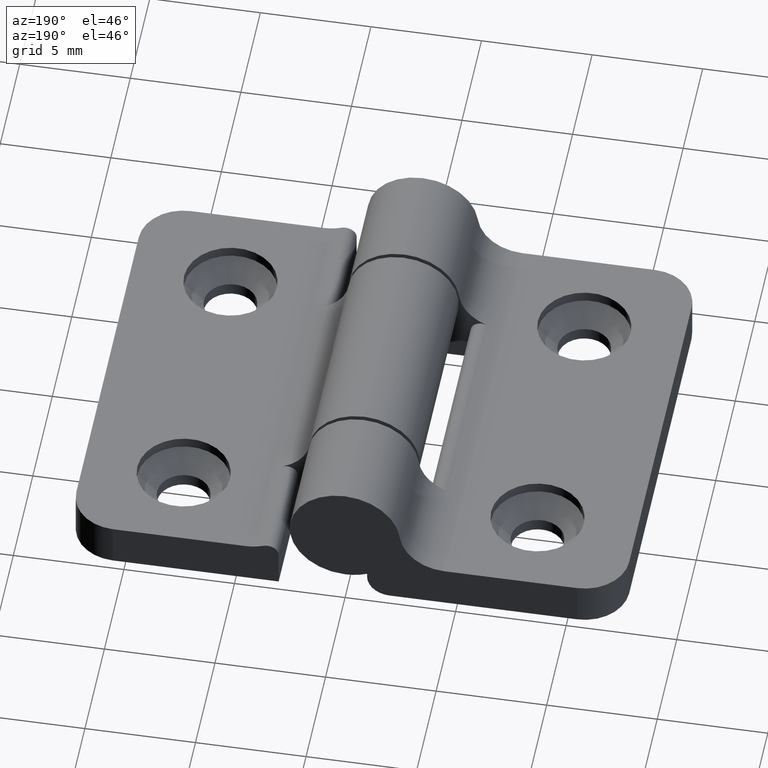
[diagram: clean part render]
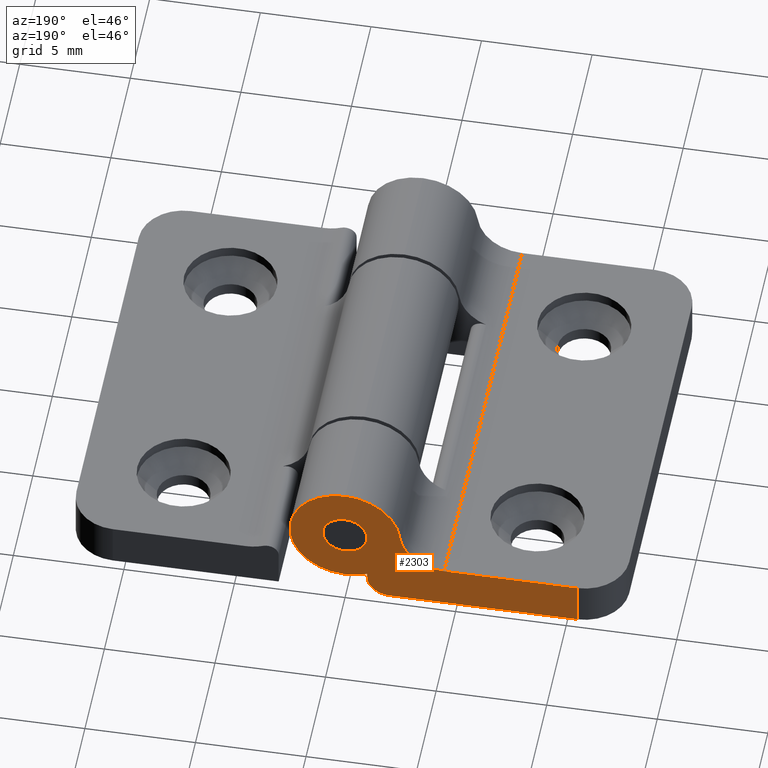
[diagram: same view with one face highlighted and labeled with its STEP entity id]
A machine part, auxiliary view. The second image highlights one B-rep face of the part: STEP entity #2303.
In plain terms, the highlighted planar face has unit normal (0, 1, 0).
Its self-contained STEP definition (entity closure, byte-faithful):
#10 = CARTESIAN_POINT ( 'NONE',  ( 0.0000000000000000000, 20.00000000000000000, 0.0000000000000000000 ) ) ;
#76 = CIRCLE ( 'NONE', #2438, 1.000000000000000000 ) ;
#81 = DIRECTION ( 'NONE',  ( 0.0000000000000000000, 0.0000000000000000000, 1.000000000000000000 ) ) ;
#86 = AXIS2_PLACEMENT_3D ( 'NONE', #999, #2335, #1196 ) ;
#94 = ORIENTED_EDGE ( 'NONE', *, *, #2414, .T. ) ;
#96 = DIRECTION ( 'NONE',  ( 0.0000000000000000000, 0.0000000000000000000, 1.000000000000000000 ) ) ;
#106 = AXIS2_PLACEMENT_3D ( 'NONE', #2408, #1272, #96 ) ;
#110 = CARTESIAN_POINT ( 'NONE',  ( -10.50000000000000000, 20.00000000000000000, -3.499999999999999600 ) ) ;
#120 = CIRCLE ( 'NONE', #106, 2.500000000000000400 ) ;
#127 = AXIS2_PLACEMENT_3D ( 'NONE', #458, #1794, #487 ) ;
#147 = CARTESIAN_POINT ( 'NONE',  ( -4.472135954999579600, 20.00000000000000000, 0.5000000000000004400 ) ) ;
#197 = DIRECTION ( 'NONE',  ( 0.0000000000000000000, 0.0000000000000000000, 1.000000000000000000 ) ) ;
#211 = DIRECTION ( 'NONE',  ( 0.0000000000000000000, 0.0000000000000000000, 1.000000000000000000 ) ) ;
#246 = DIRECTION ( 'NONE',  ( -0.0000000000000000000, 0.0000000000000000000, 1.000000000000000000 ) ) ;
#289 = CARTESIAN_POINT ( 'NONE',  ( -10.50000000000000000, 20.00000000000000000, -1.499999999999999600 ) ) ;
#298 = ORIENTED_EDGE ( 'NONE', *, *, #2085, .T. ) ;
#326 = DIRECTION ( 'NONE',  ( 0.0000000000000000000, 1.000000000000000000, 0.0000000000000000000 ) ) ;
#335 = CARTESIAN_POINT ( 'NONE',  ( 3.061616997868383600E-016, 20.00000000000000000, 2.500000000000000400 ) ) ;
#347 = DIRECTION ( 'NONE',  ( -0.0000000000000000000, -1.000000000000000000, -0.0000000000000000000 ) ) ;
#368 = VERTEX_POINT ( 'NONE', #110 ) ;
#458 = CARTESIAN_POINT ( 'NONE',  ( -1.999999999999998200, 20.00000000000000000, -2.500000000000000000 ) ) ;
#474 = EDGE_LOOP ( 'NONE', ( #94, #1545, #298, #1399, #2191, #2247, #1363, #695, #1090 ) ) ;
#475 = VERTEX_POINT ( 'NONE', #2012 ) ;
#485 = ORIENTED_EDGE ( 'NONE', *, *, #1943, .F. ) ;
#487 = DIRECTION ( 'NONE',  ( 0.0000000000000000000, 0.0000000000000000000, 1.000000000000000000 ) ) ;
#528 = EDGE_CURVE ( 'NONE', #870, #1140, #823, .T. ) ;
#538 = EDGE_CURVE ( 'NONE', #368, #1387, #1391, .T. ) ;
#566 = DIRECTION ( 'NONE',  ( 0.0000000000000000000, 1.000000000000000000, 0.0000000000000000000 ) ) ;
#576 = PLANE ( 'NONE',  #1438 ) ;
#621 = AXIS2_PLACEMENT_3D ( 'NONE', #147, #347, #197 ) ;
#695 = ORIENTED_EDGE ( 'NONE', *, *, #1815, .T. ) ;
#734 = AXIS2_PLACEMENT_3D ( 'NONE', #1476, #326, #1682 ) ;
#750 = EDGE_CURVE ( 'NONE', #1191, #990, #907, .T. ) ;
#792 = VERTEX_POINT ( 'NONE', #2188 ) ;
#823 = CIRCLE ( 'NONE', #127, 1.000000000000000000 ) ;
#870 = VERTEX_POINT ( 'NONE', #1175 ) ;
#873 = EDGE_CURVE ( 'NONE', #1032, #475, #2038, .T. ) ;
#880 = DIRECTION ( 'NONE',  ( 1.000000000000000000, 0.0000000000000000000, 0.0000000000000000000 ) ) ;
#907 = CIRCLE ( 'NONE', #621, 2.000000000000000000 ) ;
#938 = ORIENTED_EDGE ( 'NONE', *, *, #1798, .F. ) ;
#952 = DIRECTION ( 'NONE',  ( 0.0000000000000000000, -0.0000000000000000000, 1.000000000000000000 ) ) ;
#990 = VERTEX_POINT ( 'NONE', #1729 ) ;
#999 = CARTESIAN_POINT ( 'NONE',  ( 0.0000000000000000000, 20.00000000000000000, 0.0000000000000000000 ) ) ;
#1032 = VERTEX_POINT ( 'NONE', #2119 ) ;
#1089 = LINE ( 'NONE', #1818, #1598 ) ;
#1090 = ORIENTED_EDGE ( 'NONE', *, *, #528, .T. ) ;
#1140 = VERTEX_POINT ( 'NONE', #2455 ) ;
#1142 = CARTESIAN_POINT ( 'NONE',  ( -4.472135954999579600, 20.00000000000000000, -1.499999999999999600 ) ) ;
#1175 = CARTESIAN_POINT ( 'NONE',  ( -0.9999999999999991100, 20.00000000000000000, -2.500000000000000000 ) ) ;
#1191 = VERTEX_POINT ( 'NONE', #1142 ) ;
#1196 = DIRECTION ( 'NONE',  ( 0.0000000000000000000, 0.0000000000000000000, 1.000000000000000000 ) ) ;
#1253 = DIRECTION ( 'NONE',  ( 0.0000000000000000000, 1.000000000000000000, 0.0000000000000000000 ) ) ;
#1266 = VECTOR ( 'NONE', #246, 1000.000000000000000 ) ;
#1272 = DIRECTION ( 'NONE',  ( 0.0000000000000000000, 1.000000000000000000, 0.0000000000000000000 ) ) ;
#1315 = CIRCLE ( 'NONE', #86, 2.500000000000000400 ) ;
#1363 = ORIENTED_EDGE ( 'NONE', *, *, #873, .T. ) ;
#1372 = DIRECTION ( 'NONE',  ( -1.000000000000000000, -0.0000000000000000000, 3.771137991253928000E-017 ) ) ;
#1373 = DIRECTION ( 'NONE',  ( 0.0000000000000000000, 1.000000000000000000, 0.0000000000000000000 ) ) ;
#1387 = VERTEX_POINT ( 'NONE', #2067 ) ;
#1391 = LINE ( 'NONE', #289, #1266 ) ;
#1397 = CIRCLE ( 'NONE', #734, 1.000000000000000000 ) ;
#1399 = ORIENTED_EDGE ( 'NONE', *, *, #750, .T. ) ;
#1426 = VECTOR ( 'NONE', #1372, 1000.000000000000000 ) ;
#1438 = AXIS2_PLACEMENT_3D ( 'NONE', #2468, #566, #952 ) ;
#1476 = CARTESIAN_POINT ( 'NONE',  ( 0.0000000000000000000, 20.00000000000000000, 0.0000000000000000000 ) ) ;
#1510 = VECTOR ( 'NONE', #2401, 1000.000000000000000 ) ;
#1545 = ORIENTED_EDGE ( 'NONE', *, *, #538, .T. ) ;
#1598 = VECTOR ( 'NONE', #880, 1000.000000000000000 ) ;
#1628 = EDGE_CURVE ( 'NONE', #1980, #1032, #120, .T. ) ;
#1638 = CARTESIAN_POINT ( 'NONE',  ( -0.9999999999999991100, 20.00000000000000000, -3.500000000000000000 ) ) ;
#1682 = DIRECTION ( 'NONE',  ( 0.0000000000000000000, 0.0000000000000000000, 1.000000000000000000 ) ) ;
#1703 = FACE_BOUND ( 'NONE', #2458, .T. ) ;
#1729 = CARTESIAN_POINT ( 'NONE',  ( -2.484519974999766800, 20.00000000000000000, 0.2777777777777780700 ) ) ;
#1794 = DIRECTION ( 'NONE',  ( 0.0000000000000000000, 1.000000000000000000, 0.0000000000000000000 ) ) ;
#1798 = EDGE_CURVE ( 'NONE', #792, #2243, #76, .T. ) ;
#1815 = EDGE_CURVE ( 'NONE', #475, #870, #2029, .T. ) ;
#1818 = CARTESIAN_POINT ( 'NONE',  ( -12.50000000000000000, 20.00000000000000000, -1.499999999999999600 ) ) ;
#1871 = CARTESIAN_POINT ( 'NONE',  ( 1.224646799147353200E-016, 20.00000000000000000, 1.000000000000000000 ) ) ;
#1943 = EDGE_CURVE ( 'NONE', #2243, #792, #1397, .T. ) ;
#1950 = LINE ( 'NONE', #2322, #1426 ) ;
#1980 = VERTEX_POINT ( 'NONE', #335 ) ;
#2012 = CARTESIAN_POINT ( 'NONE',  ( -0.9999999999999991100, 20.00000000000000000, -2.291287847477921200 ) ) ;
#2029 = LINE ( 'NONE', #1638, #1510 ) ;
#2038 = CIRCLE ( 'NONE', #2342, 2.500000000000000400 ) ;
#2067 = CARTESIAN_POINT ( 'NONE',  ( -10.50000000000000000, 20.00000000000000000, -1.499999999999999600 ) ) ;
#2085 = EDGE_CURVE ( 'NONE', #1387, #1191, #1089, .T. ) ;
#2119 = CARTESIAN_POINT ( 'NONE',  ( 0.0000000000000000000, 20.00000000000000000, -2.500000000000000400 ) ) ;
#2188 = CARTESIAN_POINT ( 'NONE',  ( 0.0000000000000000000, 20.00000000000000000, -1.000000000000000000 ) ) ;
#2191 = ORIENTED_EDGE ( 'NONE', *, *, #2482, .T. ) ;
#2200 = FACE_OUTER_BOUND ( 'NONE', #474, .T. ) ;
#2243 = VERTEX_POINT ( 'NONE', #1871 ) ;
#2247 = ORIENTED_EDGE ( 'NONE', *, *, #1628, .T. ) ;
#2272 = CARTESIAN_POINT ( 'NONE',  ( 0.0000000000000000000, 20.00000000000000000, 0.0000000000000000000 ) ) ;
#2303 = ADVANCED_FACE ( 'NONE', ( #1703, #2200 ), #576, .T. ) ;
#2322 = CARTESIAN_POINT ( 'NONE',  ( -12.50000000000000000, 20.00000000000000000, -3.499999999999999600 ) ) ;
#2335 = DIRECTION ( 'NONE',  ( 0.0000000000000000000, 1.000000000000000000, 0.0000000000000000000 ) ) ;
#2342 = AXIS2_PLACEMENT_3D ( 'NONE', #10, #1373, #211 ) ;
#2401 = DIRECTION ( 'NONE',  ( -0.0000000000000000000, -0.0000000000000000000, -1.000000000000000000 ) ) ;
#2408 = CARTESIAN_POINT ( 'NONE',  ( 0.0000000000000000000, 20.00000000000000000, 0.0000000000000000000 ) ) ;
#2414 = EDGE_CURVE ( 'NONE', #1140, #368, #1950, .T. ) ;
#2438 = AXIS2_PLACEMENT_3D ( 'NONE', #2272, #1253, #81 ) ;
#2455 = CARTESIAN_POINT ( 'NONE',  ( -1.999999999999998200, 20.00000000000000000, -3.500000000000000000 ) ) ;
#2458 = EDGE_LOOP ( 'NONE', ( #938, #485 ) ) ;
#2468 = CARTESIAN_POINT ( 'NONE',  ( 0.0000000000000000000, 20.00000000000000000, 0.0000000000000000000 ) ) ;
#2482 = EDGE_CURVE ( 'NONE', #990, #1980, #1315, .T. ) ;